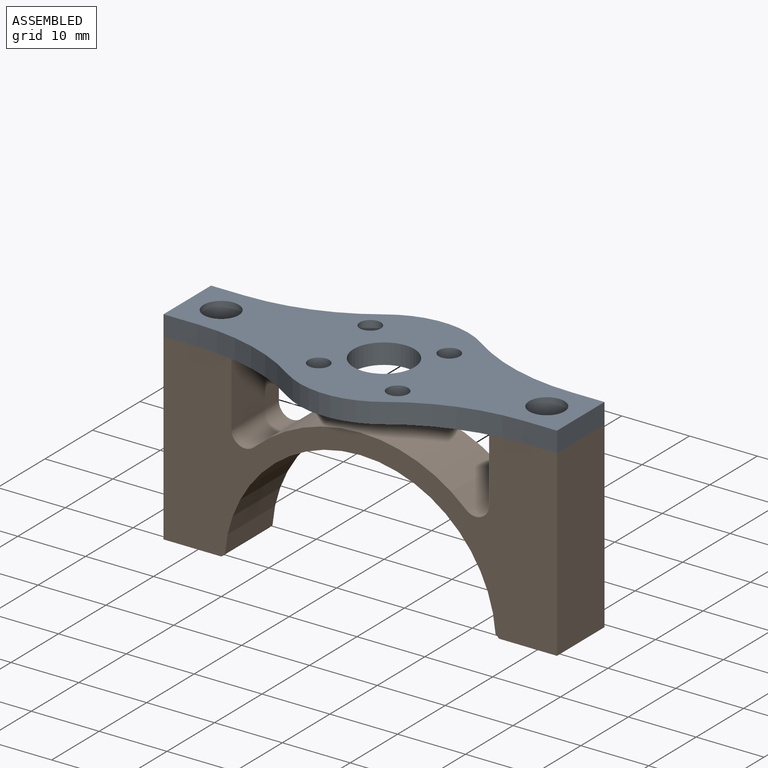
[diagram: assembled view]
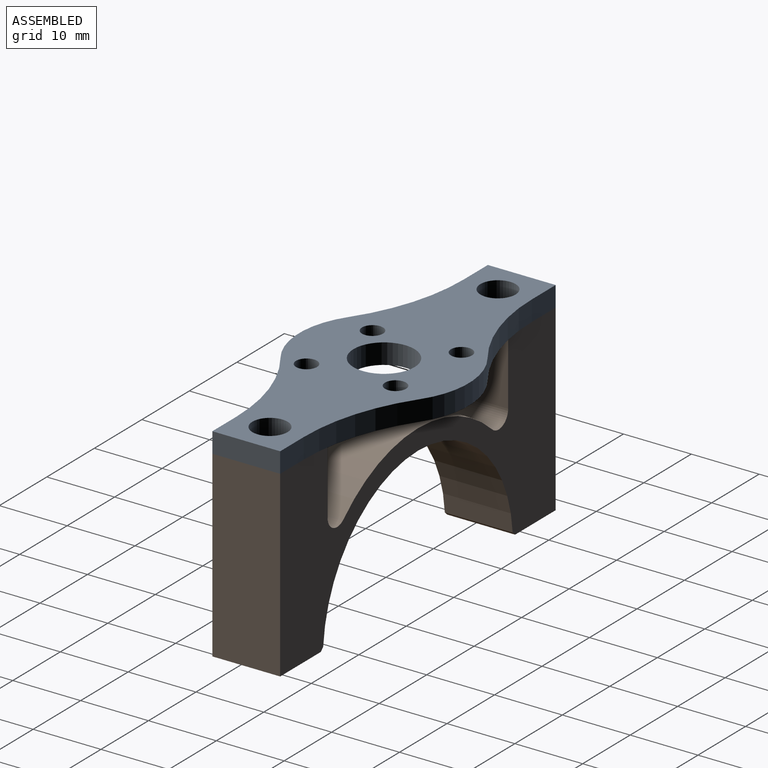
[diagram: assembled view, second angle]
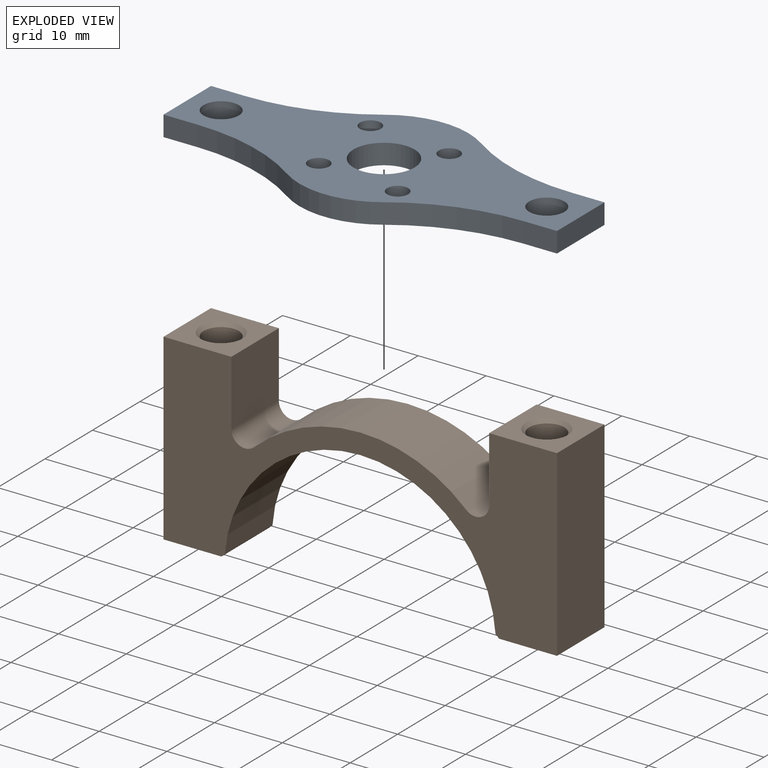
[diagram: exploded view]
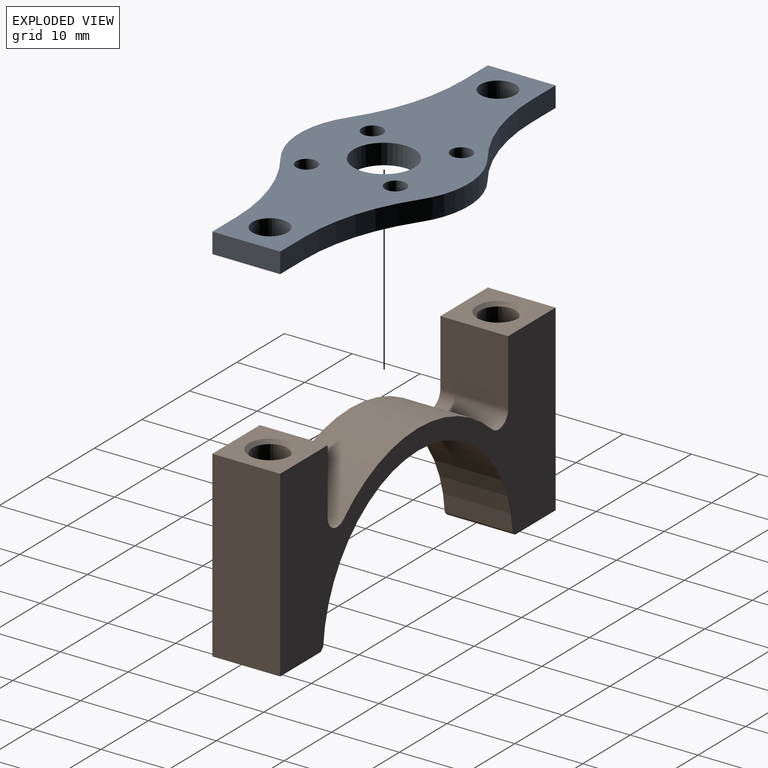
[diagram: exploded view, second angle]
ASSEMBLY  parts=2 mates=3
PART A: 21 faces, bbox 25x58x3 mm
  f0: cylinder r=29.65mm len=16.88mm, axis (0,0,-1), area 53.9mm2, adj f1,f15,f19,f20
  f1: cylinder r=12.5mm len=14.24mm, axis (0,0,-1), area 45.4mm2, adj f0,f2,f19,f20
  f2: cylinder r=29.65mm len=16.88mm, axis (0,0,-1), area 53.9mm2, adj f1,f3,f19,f20
  f3: plane 5x3mm, normal (1,0,0), area 15mm2, adj f2,f4,f19,f20
  f4: plane 10x3mm, normal (0,1,0), area 30mm2, adj f3,f5,f19,f20
  f5: plane 5x3mm, normal (-1,0,0), area 15mm2, adj f4,f6,f19,f20
  f6: cylinder r=29.65mm len=16.88mm, axis (0,0,-1), area 53.9mm2, adj f5,f7,f19,f20
  f7: cylinder r=12.5mm len=14.24mm, axis (0,0,-1), area 45.4mm2, adj f6,f8,f19,f20
  f8: cylinder r=29.65mm len=16.88mm, axis (0,0,-1), area 53.9mm2, adj f7,f9,f19,f20
  f9: plane 5x3mm, normal (-1,0,0), area 15mm2, adj f8,f10,f19,f20
  f10: plane 10x3mm, normal (0,-1,0), area 30mm2, adj f9,f15,f19,f20
  f11: cylinder r=1.55mm len=3.1mm, axis (0,0,-1), area 29.2mm2, adj f19,f20
  f12: cylinder r=2.6mm len=5.2mm, axis (0,0,-1), area 49mm2, adj f19,f20
  f13: cylinder r=2.6mm len=5.2mm, axis (0,0,-1), area 49mm2, adj f19,f20
  f14: cylinder r=1.55mm len=3.1mm, axis (0,0,-1), area 29.2mm2, adj f19,f20
  f15: plane 5x3mm, normal (1,0,0), area 15mm2, adj f0,f10,f19,f20
  f16: cylinder r=1.55mm len=3.1mm, axis (0,0,-1), area 29.2mm2, adj f19,f20
  f17: cylinder r=4.5mm len=9mm, axis (0,0,-1), area 84.8mm2, adj f19,f20
  f18: cylinder r=1.55mm len=3.1mm, axis (0,0,-1), area 29.2mm2, adj f19,f20
  f19: plane 58x25mm, normal (0,0,1), area 751.1mm2, adj f0,f1,f2,f3,f4,f5,f6,f7
  f20: plane 58x25mm, normal (0,0,-1), area 751.1mm2, adj f0,f1,f2,f3,f4,f5,f6,f7
PART B: 22 faces, bbox 58x10x27 mm
  f0: plane 10x10mm, normal (0,0,1), area 69.8mm2, adj f1,f11,f12,f13,f21
  f1: plane 27x10mm, normal (-1,0,0), area 270mm2, adj f0,f2,f12,f13
  f2: plane 10x8.53mm, normal (0,0,-1), area 55.1mm2, adj f1,f12,f13,f14,f20
  f3: cylinder r=20mm len=39.89mm, axis (0,1,0), area 598.6mm2, adj f12,f13,f14,f15
  f4: plane 10x8.53mm, normal (0,0,-1), area 55.1mm2, adj f5,f12,f13,f15,f17
  f5: plane 27x10mm, normal (1,0,0), area 270mm2, adj f4,f6,f12,f13
  f6: plane 10x10mm, normal (0,0,1), area 69.8mm2, adj f5,f7,f12,f13,f18
  f7: plane 10x9.67mm, normal (-1,0,0), area 96.7mm2, adj f6,f8,f12,f13
  f8: cylinder r=2mm len=10mm, axis (0,1,0), area 46.4mm2, adj f7,f9,f12,f13
  f9: cylinder r=23mm len=31.28mm, axis (0,1,0), area 344mm2, adj f8,f10,f12,f13
  f10: cylinder r=2mm len=10mm, axis (0,1,0), area 46.4mm2, adj f9,f11,f12,f13
  f11: plane 10x9.67mm, normal (1,0,0), area 96.7mm2, adj f0,f10,f12,f13
  f12: plane 58x27mm, normal (0,-1,0), area 684.7mm2, adj f0,f1,f2,f3,f4,f5,f6,f7
  f13: plane 58x27mm, normal (0,1,0), area 684.7mm2, adj f0,f1,f2,f3,f4,f5,f6,f7
  f14: plane 10x0.52mm, normal (0.68,0,-0.73), area 7.2mm2, adj f2,f3,f12,f13
  f15: plane 10x0.52mm, normal (-0.68,0,-0.73), area 7.2mm2, adj f3,f4,f12,f13
  f16: cylinder r=2.6mm len=26mm, axis (0,0,1), area 424.7mm2, adj f17,f18
  f17: cone r=3.1mm half-angle=45deg, axis (0,0,-1), area 12.7mm2, adj f4,f16
  f18: cone r=2.6mm half-angle=45deg, axis (0,0,1), area 12.7mm2, adj f6,f16
  f19: cylinder r=2.6mm len=26mm, axis (0,0,1), area 424.7mm2, adj f20,f21
  f20: cone r=3.1mm half-angle=45deg, axis (0,0,-1), area 12.7mm2, adj f2,f19
  f21: cone r=3.1mm half-angle=45deg, axis (0,0,1), area 12.7mm2, adj f0,f19
PLACE A rot(axis=(0,0,1),90deg) t=(9.52,16.38,62.84)mm
PLACE B t=(9.52,16.38,34.84)mm
MATE planar B.f20 <-> A.f1  axis (0,0,1) through (-14.48,16.38,62.84)mm
MATE planar A.f5 <-> B.f12  axis (0,-1,0) through (-16.98,11.38,64.34)mm
MATE planar B.f1 <-> A.f4  axis (-1,0,0) through (-19.48,16.38,49.34)mm
